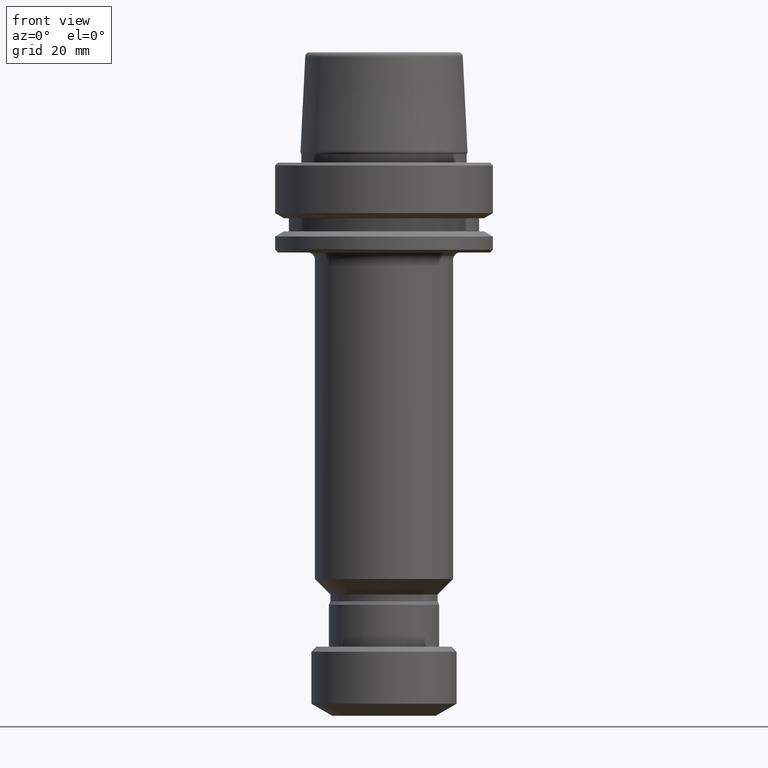
[diagram: clean part render]
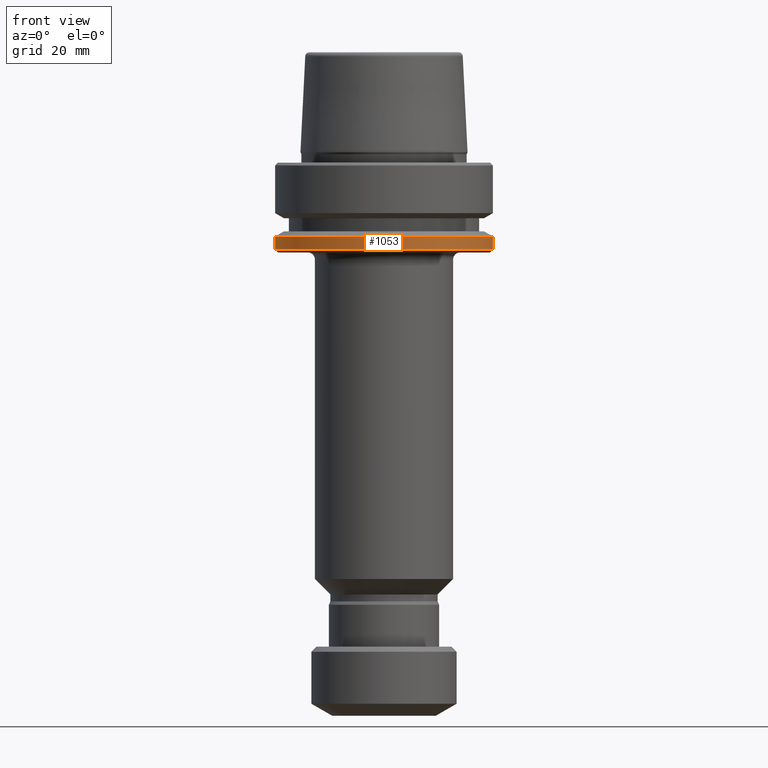
[diagram: same view with one face highlighted and labeled with its STEP entity id]
A machine part, front view. The second image highlights one B-rep face of the part: STEP entity #1053.
In plain terms, the highlighted cylindrical surface (partial cylindrical patch) has radius 31.5 mm, axis along (-0, -0, 1).
Its self-contained STEP definition (entity closure, byte-faithful):
#53 = CARTESIAN_POINT ( 'NONE',  ( 31.50000000000000000, 0.0000000000000000000, -25.03431457505077200 ) ) ;
#97 = DIRECTION ( 'NONE',  ( 1.000000000000000000, 0.0000000000000000000, 0.0000000000000000000 ) ) ;
#193 = LINE ( 'NONE', #282, #219 ) ;
#219 = VECTOR ( 'NONE', #1349, 1000.000000000000000 ) ;
#244 = VERTEX_POINT ( 'NONE', #456 ) ;
#275 = DIRECTION ( 'NONE',  ( -0.0000000000000000000, -0.0000000000000000000, 1.000000000000000000 ) ) ;
#282 = CARTESIAN_POINT ( 'NONE',  ( -31.50000000000000000, 3.857637417314162700E-015, 78.96908074195309300 ) ) ;
#375 = ORIENTED_EDGE ( 'NONE', *, *, #1561, .F. ) ;
#415 = DIRECTION ( 'NONE',  ( -0.0000000000000000000, -0.0000000000000000000, 1.000000000000000000 ) ) ;
#449 = CARTESIAN_POINT ( 'NONE',  ( 31.50000000000000000, 0.0000000000000000000, 78.96908074195309300 ) ) ;
#456 = CARTESIAN_POINT ( 'NONE',  ( -31.50000000000000000, 3.857637417314162700E-015, -21.37749907475931700 ) ) ;
#460 = CARTESIAN_POINT ( 'NONE',  ( 0.0000000000000000000, 0.0000000000000000000, -21.37749907475931700 ) ) ;
#461 = EDGE_CURVE ( 'NONE', #1029, #1226, #1327, .T. ) ;
#474 = DIRECTION ( 'NONE',  ( -0.0000000000000000000, -0.0000000000000000000, 1.000000000000000000 ) ) ;
#484 = CARTESIAN_POINT ( 'NONE',  ( -31.50000000000000000, 3.857637417314161900E-015, -25.03431457505077200 ) ) ;
#566 = CARTESIAN_POINT ( 'NONE',  ( 0.0000000000000000000, 0.0000000000000000000, 78.96908074195309300 ) ) ;
#631 = DIRECTION ( 'NONE',  ( 1.000000000000000000, 0.0000000000000000000, 0.0000000000000000000 ) ) ;
#686 = EDGE_CURVE ( 'NONE', #244, #1359, #1012, .T. ) ;
#849 = DIRECTION ( 'NONE',  ( 1.000000000000000000, 0.0000000000000000000, 0.0000000000000000000 ) ) ;
#854 = DIRECTION ( 'NONE',  ( -0.0000000000000000000, -0.0000000000000000000, 1.000000000000000000 ) ) ;
#889 = EDGE_LOOP ( 'NONE', ( #375, #1563, #1076, #954 ) ) ;
#912 = VECTOR ( 'NONE', #415, 1000.000000000000000 ) ;
#954 = ORIENTED_EDGE ( 'NONE', *, *, #686, .F. ) ;
#1012 = CIRCLE ( 'NONE', #1263, 31.50000000000000000 ) ;
#1029 = VERTEX_POINT ( 'NONE', #484 ) ;
#1049 = FACE_OUTER_BOUND ( 'NONE', #889, .T. ) ;
#1053 = ADVANCED_FACE ( 'NONE', ( #1049 ), #1178, .T. ) ;
#1076 = ORIENTED_EDGE ( 'NONE', *, *, #1296, .T. ) ;
#1131 = AXIS2_PLACEMENT_3D ( 'NONE', #566, #275, #631 ) ;
#1178 = CYLINDRICAL_SURFACE ( 'NONE', #1131, 31.50000000000000000 ) ;
#1226 = VERTEX_POINT ( 'NONE', #53 ) ;
#1263 = AXIS2_PLACEMENT_3D ( 'NONE', #460, #474, #97 ) ;
#1286 = AXIS2_PLACEMENT_3D ( 'NONE', #1496, #854, #849 ) ;
#1296 = EDGE_CURVE ( 'NONE', #1226, #1359, #1520, .T. ) ;
#1319 = CARTESIAN_POINT ( 'NONE',  ( 31.50000000000000000, 0.0000000000000000000, -21.37749907475931700 ) ) ;
#1327 = CIRCLE ( 'NONE', #1286, 31.50000000000000000 ) ;
#1349 = DIRECTION ( 'NONE',  ( -0.0000000000000000000, -0.0000000000000000000, 1.000000000000000000 ) ) ;
#1359 = VERTEX_POINT ( 'NONE', #1319 ) ;
#1496 = CARTESIAN_POINT ( 'NONE',  ( 0.0000000000000000000, 0.0000000000000000000, -25.03431457505077200 ) ) ;
#1520 = LINE ( 'NONE', #449, #912 ) ;
#1561 = EDGE_CURVE ( 'NONE', #1029, #244, #193, .T. ) ;
#1563 = ORIENTED_EDGE ( 'NONE', *, *, #461, .T. ) ;